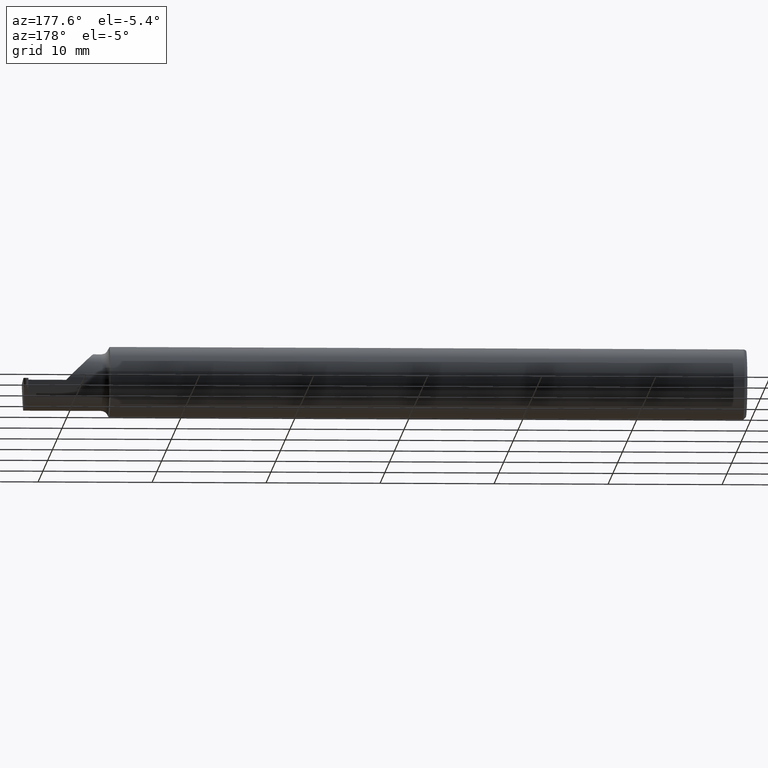
[diagram: clean part render]
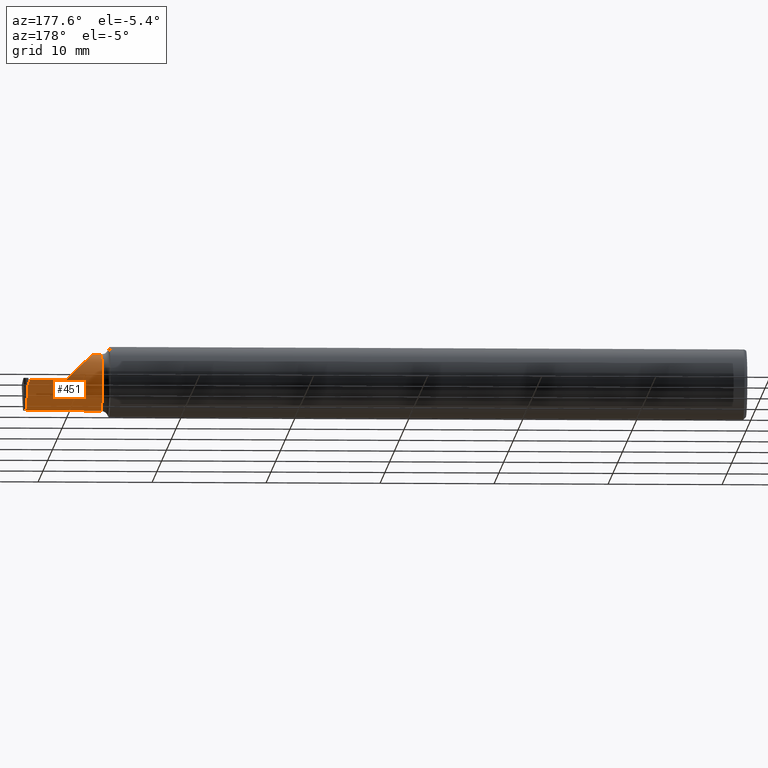
[diagram: same view with one face highlighted and labeled with its STEP entity id]
A machine part, auxiliary view. The second image highlights one B-rep face of the part: STEP entity #451.
In plain terms, the highlighted cylindrical surface (edge-blend (fillet) strip) has radius 2.4892 mm, axis along (-1, 0, -0).
Its self-contained STEP definition (entity closure, byte-faithful):
#2 = CARTESIAN_POINT ( 'NONE',  ( 2.200000000000000178, 0.05399999999999999939, 3.673940397442056417E-17 ) ) ;
#6 = CARTESIAN_POINT ( 'NONE',  ( 2.224355642859858317, -0.01728409361947881584, 0.1256443571401406056 ) ) ;
#9 = VERTEX_POINT ( 'NONE', #252 ) ;
#13 = VERTEX_POINT ( 'NONE', #570 ) ;
#16 = AXIS2_PLACEMENT_3D ( 'NONE', #509, #355, #357 ) ;
#36 = CARTESIAN_POINT ( 'NONE',  ( 2.263691591372603895, -0.09042045454545458161, 0.08630840862739504182 ) ) ;
#39 = LINE ( 'NONE', #43, #253 ) ;
#40 = LINE ( 'NONE', #692, #327 ) ;
#43 = CARTESIAN_POINT ( 'NONE',  ( 2.353741705000000017, -0.09042045454545420691, -0.08630840862739533326 ) ) ;
#52 = B_SPLINE_CURVE_WITH_KNOTS ( 'NONE', 3,
 ( #116, #121, #236, #334 ),
 .UNSPECIFIED., .F., .F.,
 ( 4, 4 ),
 ( 0.000000000000000000, 1.000000000000000000 ),
 .UNSPECIFIED. ) ;
#57 = DIRECTION ( 'NONE',  ( 1.000000000000000000, -3.022133221983130545E-17, 0.000000000000000000 ) ) ;
#63 = ORIENTED_EDGE ( 'NONE', *, *, #507, .T. ) ;
#64 = CARTESIAN_POINT ( 'NONE',  ( 2.266956372099407258, 0.05399999999999999939, 0.08304362790059187371 ) ) ;
#87 = ORIENTED_EDGE ( 'NONE', *, *, #217, .F. ) ;
#93 = CARTESIAN_POINT ( 'NONE',  ( 2.483759070038810801, 0.05376127692546273790, -0.006836134426924772231 ) ) ;
#94 = DIRECTION ( 'NONE',  ( 0.000000000000000000, -1.000000000000000000, 0.000000000000000000 ) ) ;
#101 = ORIENTED_EDGE ( 'NONE', *, *, #658, .T. ) ;
#116 = CARTESIAN_POINT ( 'NONE',  ( 2.477090476183632539, 0.05376127692546273096, -0.006836134426924777435 ) ) ;
#119 = CARTESIAN_POINT ( 'NONE',  ( 2.263691591372603895, -0.09042045454545458161, 0.08630840862739504182 ) ) ;
#121 = CARTESIAN_POINT ( 'NONE',  ( 2.477170050541811719, 0.05384085128364181350, -0.004557422951283176572 ) ) ;
#125 = EDGE_CURVE ( 'NONE', #231, #596, #52, .T. ) ;
#131 = ORIENTED_EDGE ( 'NONE', *, *, #167, .F. ) ;
#160 = VECTOR ( 'NONE', #639, 39.37007874015748143 ) ;
#162 = CARTESIAN_POINT ( 'NONE',  ( 2.485685536098598103, 0.04997501107658532116, -0.06098225869090301288 ) ) ;
#167 = EDGE_CURVE ( 'NONE', #9, #231, #475, .T. ) ;
#176 = CIRCLE ( 'NONE', #16, 0.09800000000000012867 ) ;
#184 = ORIENTED_EDGE ( 'NONE', *, *, #465, .F. ) ;
#206 = CARTESIAN_POINT ( 'NONE',  ( 2.487115857322145018, -0.04400000000000009459, -0.09800000000000008704 ) ) ;
#207 = CARTESIAN_POINT ( 'NONE',  ( 2.493431982762754462, -0.09042045454545420691, -0.08630840862739533326 ) ) ;
#213 = CARTESIAN_POINT ( 'NONE',  ( 2.225000000000000089, -0.09042045454545417915, -0.08630840862739536101 ) ) ;
#216 = CARTESIAN_POINT ( 'NONE',  ( 2.477090476183632539, 0.05376127692546273096, -0.006836134426924777435 ) ) ;
#217 = EDGE_CURVE ( 'NONE', #380, #13, #350, .T. ) ;
#231 = VERTEX_POINT ( 'NONE', #216 ) ;
#236 = CARTESIAN_POINT ( 'NONE',  ( 2.477249624899990899, 0.05392042564182088910, -0.002278711475641588286 ) ) ;
#241 = VERTEX_POINT ( 'NONE', #213 ) ;
#252 = CARTESIAN_POINT ( 'NONE',  ( 2.483759070038810801, 0.05376127692546273790, -0.006836134426924772231 ) ) ;
#253 = VECTOR ( 'NONE', #637, 39.37007874015748143 ) ;
#255 = DIRECTION ( 'NONE',  ( 1.000000000000000000, -3.022133221983130545E-17, 0.000000000000000000 ) ) ;
#256 = ORIENTED_EDGE ( 'NONE', *, *, #125, .F. ) ;
#261 =( BOUNDED_CURVE ( )  B_SPLINE_CURVE ( 3, ( #119, #6, #64, #543 ),
 .UNSPECIFIED., .F., .F. ) 
 B_SPLINE_CURVE_WITH_KNOTS ( ( 4, 4 ),
 ( 5.789722842198294472, 7.853981633974482790 ),
 .UNSPECIFIED. ) 
 CURVE ( )  GEOMETRIC_REPRESENTATION_ITEM ( )  RATIONAL_B_SPLINE_CURVE ( ( 1.000000000000000000, 0.6753281001527240424, 0.6753281001527240424, 1.000000000000000000 ) ) 
 REPRESENTATION_ITEM ( '' )  );
#270 = CARTESIAN_POINT ( 'NONE',  ( 2.672413070268786939, -0.04400000000000017092, -0.09800000000000008704 ) ) ;
#315 = CARTESIAN_POINT ( 'NONE',  ( 2.487048583644937416, 0.01027834358092125436, -0.09800000000000010092 ) ) ;
#320 = LINE ( 'NONE', #2, #461 ) ;
#327 = VECTOR ( 'NONE', #255, 39.37007874015748143 ) ;
#334 = CARTESIAN_POINT ( 'NONE',  ( 2.477329199258169634, 0.05399999999999997163, 0.000000000000000000 ) ) ;
#339 = ORIENTED_EDGE ( 'NONE', *, *, #534, .F. ) ;
#342 = VECTOR ( 'NONE', #696, 39.37007874015748143 ) ;
#343 = EDGE_CURVE ( 'NONE', #549, #241, #176, .T. ) ;
#350 =( BOUNDED_CURVE ( )  B_SPLINE_CURVE ( 3, ( #587, #529, #594, #476 ),
 .UNSPECIFIED., .F., .T. ) 
 B_SPLINE_CURVE_WITH_KNOTS ( ( 4, 4 ),
 ( 6.253187659403606879, 6.746650124384893310 ),
 .UNSPECIFIED. ) 
 CURVE ( )  GEOMETRIC_REPRESENTATION_ITEM ( )  RATIONAL_B_SPLINE_CURVE ( ( 1.000000000000000000, 0.9798106333074692031, 0.9798106333074692031, 1.000000000000000000 ) ) 
 REPRESENTATION_ITEM ( '' )  );
#355 = DIRECTION ( 'NONE',  ( -1.000000000000000000, 3.022133221983130545E-17, -0.000000000000000000 ) ) ;
#357 = DIRECTION ( 'NONE',  ( 0.000000000000000000, -1.000000000000000000, 0.000000000000000000 ) ) ;
#372 = CARTESIAN_POINT ( 'NONE',  ( 2.487115857322145018, -0.04400000000000009459, -0.09800000000000008704 ) ) ;
#376 = CARTESIAN_POINT ( 'NONE',  ( 2.225000000000000089, -0.09042045454545413752, 0.08630840862739540265 ) ) ;
#380 = VERTEX_POINT ( 'NONE', #207 ) ;
#381 = CARTESIAN_POINT ( 'NONE',  ( 2.350000000000000089, 0.05399999999999999245, 3.673940397442056417E-17 ) ) ;
#433 = VERTEX_POINT ( 'NONE', #36 ) ;
#436 = EDGE_CURVE ( 'NONE', #549, #433, #40, .T. ) ;
#451 = ADVANCED_FACE ( 'NONE', ( #575 ), #467, .T. ) ;
#460 = DIRECTION ( 'NONE',  ( -1.000000000000000000, 3.022133221983130545E-17, -0.000000000000000000 ) ) ;
#461 = VECTOR ( 'NONE', #57, 39.37007874015748143 ) ;
#465 = EDGE_CURVE ( 'NONE', #541, #9, #556, .T. ) ;
#467 = CYLINDRICAL_SURFACE ( 'NONE', #693, 0.09800000000000008704 ) ;
#475 = LINE ( 'NONE', #580, #342 ) ;
#476 = CARTESIAN_POINT ( 'NONE',  ( 2.493833913251130241, -0.04400000000000017092, -0.09800000000000008704 ) ) ;
#479 = ORIENTED_EDGE ( 'NONE', *, *, #510, .T. ) ;
#492 = ORIENTED_EDGE ( 'NONE', *, *, #343, .F. ) ;
#507 = EDGE_CURVE ( 'NONE', #380, #241, #39, .T. ) ;
#509 = CARTESIAN_POINT ( 'NONE',  ( 2.225000000000000089, -0.04400000000000008765, 0.000000000000000000 ) ) ;
#510 = EDGE_CURVE ( 'NONE', #677, #596, #320, .T. ) ;
#529 = CARTESIAN_POINT ( 'NONE',  ( 2.493412911089820660, -0.07607783494366261723, -0.09402249966297462902 ) ) ;
#534 = EDGE_CURVE ( 'NONE', #13, #541, #695, .T. ) ;
#539 = CARTESIAN_POINT ( 'NONE',  ( 2.477329199258169634, 0.05399999999999997163, 0.000000000000000000 ) ) ;
#541 = VERTEX_POINT ( 'NONE', #206 ) ;
#543 = CARTESIAN_POINT ( 'NONE',  ( 2.350000000000000089, 0.05399999999999999245, 3.673940397442056417E-17 ) ) ;
#549 = VERTEX_POINT ( 'NONE', #376 ) ;
#552 = EDGE_LOOP ( 'NONE', ( #63, #492, #665, #101, #479, #256, #131, #184, #339, #87 ) ) ;
#556 =( BOUNDED_CURVE ( )  B_SPLINE_CURVE ( 3, ( #372, #315, #162, #93 ),
 .UNSPECIFIED., .F., .T. ) 
 B_SPLINE_CURVE_WITH_KNOTS ( ( 4, 4 ),
 ( 3.176499238629680644, 4.677482395344799038 ),
 .UNSPECIFIED. ) 
 CURVE ( )  GEOMETRIC_REPRESENTATION_ITEM ( )  RATIONAL_B_SPLINE_CURVE ( ( 1.000000000000000000, 0.8209024677461147501, 0.8209024677461147501, 1.000000000000000000 ) ) 
 REPRESENTATION_ITEM ( '' )  );
#570 = CARTESIAN_POINT ( 'NONE',  ( 2.493833913251130241, -0.04400000000000017092, -0.09800000000000008704 ) ) ;
#575 = FACE_OUTER_BOUND ( 'NONE', #552, .T. ) ;
#580 = CARTESIAN_POINT ( 'NONE',  ( 2.200000000000000178, 0.05376127692546272402, -0.006836134426925156472 ) ) ;
#587 = CARTESIAN_POINT ( 'NONE',  ( 2.493431982762754462, -0.09042045454545420691, -0.08630840862739533326 ) ) ;
#594 = CARTESIAN_POINT ( 'NONE',  ( 2.493549648562250809, -0.06028551311893198816, -0.09800000000000007316 ) ) ;
#596 = VERTEX_POINT ( 'NONE', #539 ) ;
#637 = DIRECTION ( 'NONE',  ( -1.000000000000000000, 3.022133221983130545E-17, -0.000000000000000000 ) ) ;
#639 = DIRECTION ( 'NONE',  ( -1.000000000000000000, -0.000000000000000000, -0.000000000000000000 ) ) ;
#658 = EDGE_CURVE ( 'NONE', #433, #677, #261, .T. ) ;
#665 = ORIENTED_EDGE ( 'NONE', *, *, #436, .T. ) ;
#677 = VERTEX_POINT ( 'NONE', #381 ) ;
#685 = CARTESIAN_POINT ( 'NONE',  ( 2.200000000000000178, -0.04400000000000008765, 0.000000000000000000 ) ) ;
#692 = CARTESIAN_POINT ( 'NONE',  ( 2.353741705000000017, -0.09042045454545420691, 0.08630840862739533326 ) ) ;
#693 = AXIS2_PLACEMENT_3D ( 'NONE', #685, #460, #94 ) ;
#695 = LINE ( 'NONE', #270, #160 ) ;
#696 = DIRECTION ( 'NONE',  ( -1.000000000000000000, 3.022133221983130545E-17, -0.000000000000000000 ) ) ;